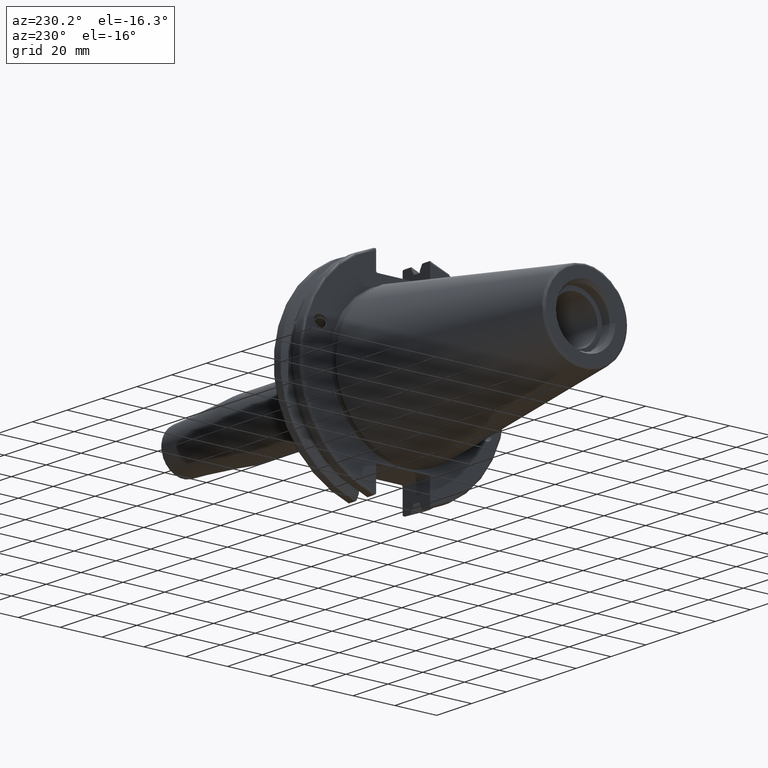
[diagram: clean part render]
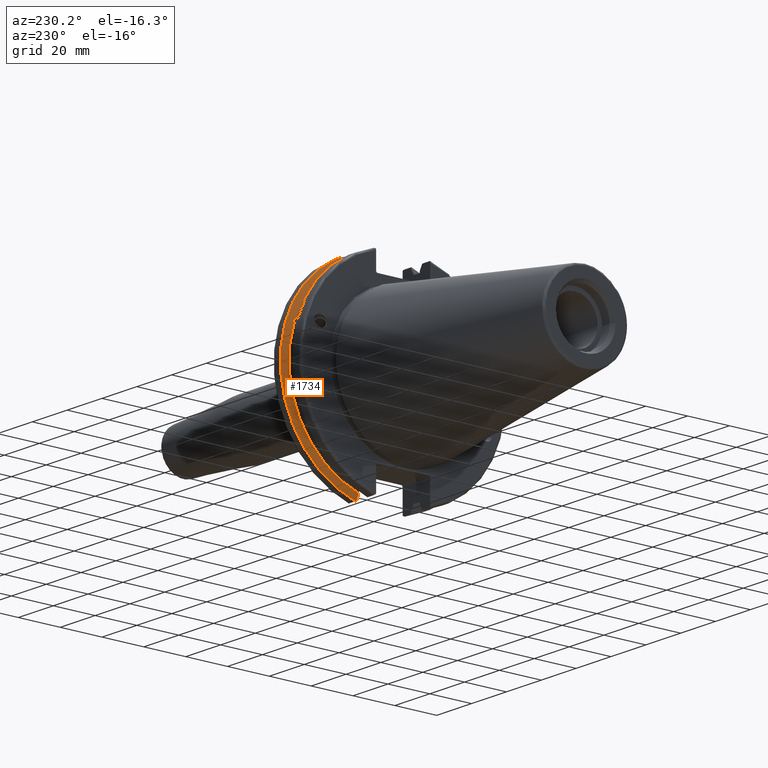
[diagram: same view with one face highlighted and labeled with its STEP entity id]
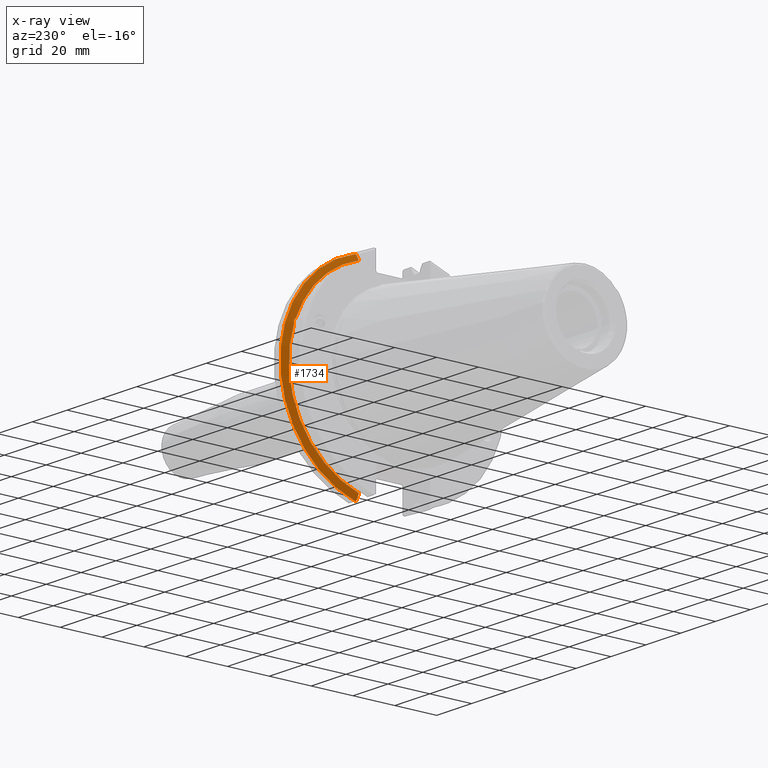
[diagram: x-ray of the same camera — body ghosted, the highlighted face saturated]
A machine part, auxiliary view. The second image highlights one B-rep face of the part: STEP entity #1734.
The next image is the same camera in x-ray: the body ghosted, the highlighted face saturated — about 0% of this face is hidden behind the body in this view.
In plain terms, the highlighted conical surface has half-angle 60 deg.
Its self-contained STEP definition (entity closure, byte-faithful):
#23=(
BOUNDED_CURVE()
B_SPLINE_CURVE(2,(#3378,#3379,#3380),.UNSPECIFIED.,.F.,.F.)
B_SPLINE_CURVE_WITH_KNOTS((3,3),(0.325260944932521,0.390084992222202),
 .UNSPECIFIED.)
CURVE()
GEOMETRIC_REPRESENTATION_ITEM()
RATIONAL_B_SPLINE_CURVE((1.00019140645994,1.00011477674864,1.))
REPRESENTATION_ITEM('')
);
#24=(
BOUNDED_CURVE()
B_SPLINE_CURVE(2,(#3392,#3393,#3394),.UNSPECIFIED.,.F.,.F.)
B_SPLINE_CURVE_WITH_KNOTS((3,3),(0.0558332664532001,0.331657177124504),
 .UNSPECIFIED.)
CURVE()
GEOMETRIC_REPRESENTATION_ITEM()
RATIONAL_B_SPLINE_CURVE((1.00012873636632,1.00038235574022,1.))
REPRESENTATION_ITEM('')
);
#29=(
BOUNDED_CURVE()
B_SPLINE_CURVE(2,(#3557,#3558,#3559),.UNSPECIFIED.,.F.,.F.)
B_SPLINE_CURVE_WITH_KNOTS((3,3),(0.,0.275823910671402),.UNSPECIFIED.)
CURVE()
GEOMETRIC_REPRESENTATION_ITEM()
RATIONAL_B_SPLINE_CURVE((1.,1.00038235574129,1.00012873636668))
REPRESENTATION_ITEM('')
);
#30=(
BOUNDED_CURVE()
B_SPLINE_CURVE(2,(#3574,#3575,#3576),.UNSPECIFIED.,.F.,.F.)
B_SPLINE_CURVE_WITH_KNOTS((3,3),(0.,0.0648240472897064),.UNSPECIFIED.)
CURVE()
GEOMETRIC_REPRESENTATION_ITEM()
RATIONAL_B_SPLINE_CURVE((1.,1.00011477674844,1.00019140645961))
REPRESENTATION_ITEM('')
);
#114=CONICAL_SURFACE('',#1929,47.8172386482472,1.0471975511966);
#164=CIRCLE('',#1862,46.4219772964944);
#188=CIRCLE('',#1922,49.2125);
#191=CIRCLE('',#1930,46.4219772964944);
#281=FACE_OUTER_BOUND('',#399,.T.);
#399=EDGE_LOOP('',(#1559,#1560,#1561,#1562,#1563,#1564,#1565,#1566,#1567));
#448=B_SPLINE_CURVE_WITH_KNOTS('',3,(#3174,#3175,#3176,#3177,#3178,#3179,
#3180,#3181),.UNSPECIFIED.,.F.,.F.,(4,2,2,4),(0.426712868358719,0.441644498666905,
0.480313313223129,0.518982127779353),.UNSPECIFIED.);
#452=B_SPLINE_CURVE_WITH_KNOTS('',3,(#3236,#3237,#3238,#3239,#3240,#3241,
#3242,#3243),.UNSPECIFIED.,.F.,.F.,(4,2,2,4),(0.518982127779353,0.557650942335576,
0.5963197568918,0.611251387199989),.UNSPECIFIED.);
#767=VERTEX_POINT('',#3171);
#768=VERTEX_POINT('',#3173);
#775=VERTEX_POINT('',#3234);
#784=VERTEX_POINT('',#3276);
#812=VERTEX_POINT('',#3375);
#813=VERTEX_POINT('',#3377);
#838=VERTEX_POINT('',#3554);
#839=VERTEX_POINT('',#3556);
#842=VERTEX_POINT('',#3572);
#972=EDGE_CURVE('',#768,#767,#448,.T.);
#980=EDGE_CURVE('',#767,#775,#452,.T.);
#992=EDGE_CURVE('',#784,#768,#164,.T.);
#1029=EDGE_CURVE('',#812,#813,#23,.T.);
#1034=EDGE_CURVE('',#812,#784,#24,.T.);
#1079=EDGE_CURVE('',#839,#838,#29,.T.);
#1087=EDGE_CURVE('',#842,#838,#30,.T.);
#1088=EDGE_CURVE('',#813,#842,#188,.T.);
#1094=EDGE_CURVE('',#775,#839,#191,.T.);
#1559=ORIENTED_EDGE('',*,*,#972,.T.);
#1560=ORIENTED_EDGE('',*,*,#980,.T.);
#1561=ORIENTED_EDGE('',*,*,#1094,.T.);
#1562=ORIENTED_EDGE('',*,*,#1079,.T.);
#1563=ORIENTED_EDGE('',*,*,#1087,.F.);
#1564=ORIENTED_EDGE('',*,*,#1088,.F.);
#1565=ORIENTED_EDGE('',*,*,#1029,.F.);
#1566=ORIENTED_EDGE('',*,*,#1034,.T.);
#1567=ORIENTED_EDGE('',*,*,#992,.T.);
#1734=ADVANCED_FACE('',(#281),#114,.T.);
#1862=AXIS2_PLACEMENT_3D('',#3277,#2184,#2185);
#1922=AXIS2_PLACEMENT_3D('',#3578,#2351,#2352);
#1929=AXIS2_PLACEMENT_3D('',#3591,#2368,#2369);
#1930=AXIS2_PLACEMENT_3D('',#3592,#2370,#2371);
#2184=DIRECTION('center_axis',(1.,0.,0.));
#2185=DIRECTION('ref_axis',(0.,0.,-1.));
#2351=DIRECTION('center_axis',(1.,0.,0.));
#2352=DIRECTION('ref_axis',(0.,0.,-1.));
#2368=DIRECTION('center_axis',(1.,0.,0.));
#2369=DIRECTION('ref_axis',(0.,1.,0.));
#2370=DIRECTION('center_axis',(1.,0.,0.));
#2371=DIRECTION('ref_axis',(0.,0.,-1.));
#3171=CARTESIAN_POINT('',(13.2341,43.923494649906,15.9868446375166));
#3173=CARTESIAN_POINT('',(13.0491,43.9096390749305,15.0646464421033));
#3174=CARTESIAN_POINT('Ctrl Pts',(13.0491,43.9096390749305,15.0646464421033));
#3175=CARTESIAN_POINT('Ctrl Pts',(13.0660815609661,43.9250360001461,15.1104047527575));
#3176=CARTESIAN_POINT('Ctrl Pts',(13.0821132459668,43.9385582852181,15.1564111356409));
#3177=CARTESIAN_POINT('Ctrl Pts',(13.1358132615496,43.9797830409459,15.3217566390709));
#3178=CARTESIAN_POINT('Ctrl Pts',(13.1719838933644,43.9989016655819,15.4570249042868));
#3179=CARTESIAN_POINT('Ctrl Pts',(13.2212913174802,43.9931221605126,15.7289849146254));
#3180=CARTESIAN_POINT('Ctrl Pts',(13.2341,43.9675796948952,15.8657219718732));
#3181=CARTESIAN_POINT('Ctrl Pts',(13.2341,43.923494649906,15.9868446375166));
#3234=CARTESIAN_POINT('',(13.0491,43.3201030900029,16.684383248648));
#3236=CARTESIAN_POINT('Ctrl Pts',(13.2341,43.923494649906,15.9868446375166));
#3237=CARTESIAN_POINT('Ctrl Pts',(13.2341,43.8794096049169,16.10796730316));
#3238=CARTESIAN_POINT('Ctrl Pts',(13.2212913174802,43.8110833825827,16.2291323464527));
#3239=CARTESIAN_POINT('Ctrl Pts',(13.1719838933644,43.6406982153492,16.441180795372));
#3240=CARTESIAN_POINT('Ctrl Pts',(13.1358132615496,43.5391037343221,16.5325130832406));
#3241=CARTESIAN_POINT('Ctrl Pts',(13.0821132459668,43.4012416983557,16.6326763251437));
#3242=CARTESIAN_POINT('Ctrl Pts',(13.0660815609661,43.3613106941341,16.6592273018006));
#3243=CARTESIAN_POINT('Ctrl Pts',(13.0491,43.3201030900029,16.684383248648));
#3276=CARTESIAN_POINT('',(13.0491,12.95,-44.5791147973605));
#3277=CARTESIAN_POINT('Origin',(13.0491,0.,0.));
#3375=CARTESIAN_POINT('',(14.3818103943757,12.95,-46.9780755322918));
#3377=CARTESIAN_POINT('',(14.6602090340487,13.4317035994433,-47.3440544806494));
#3378=CARTESIAN_POINT('Ctrl Pts',(14.3818103943757,12.95,-46.9780755322918));
#3379=CARTESIAN_POINT('Ctrl Pts',(14.5199310333617,13.1896660169965,-47.1601640966264));
#3380=CARTESIAN_POINT('Ctrl Pts',(14.6602090340487,13.4317035994433,-47.3440544806494));
#3392=CARTESIAN_POINT('Ctrl Pts',(14.3818103943757,12.95,-46.9780755322918));
#3393=CARTESIAN_POINT('Ctrl Pts',(13.6979955094851,12.95,-45.7494966802933));
#3394=CARTESIAN_POINT('Ctrl Pts',(13.0491,12.95,-44.5791147973604));
#3554=CARTESIAN_POINT('',(14.3818103943757,12.95,46.9780755322918));
#3556=CARTESIAN_POINT('',(13.0491,12.95,44.5791147973604));
#3557=CARTESIAN_POINT('Ctrl Pts',(13.0491,12.95,44.5791147973604));
#3558=CARTESIAN_POINT('Ctrl Pts',(13.6979955094846,12.95,45.7494966802924));
#3559=CARTESIAN_POINT('Ctrl Pts',(14.3818103943757,12.95,46.9780755322918));
#3572=CARTESIAN_POINT('',(14.6602090340487,13.4317035994433,47.3440544806494));
#3574=CARTESIAN_POINT('Ctrl Pts',(14.6602090340487,13.4317035994433,47.3440544806494));
#3575=CARTESIAN_POINT('Ctrl Pts',(14.5199310333618,13.1896660169966,47.1601640966264));
#3576=CARTESIAN_POINT('Ctrl Pts',(14.3818103943757,12.95,46.9780755322918));
#3578=CARTESIAN_POINT('Origin',(14.6602090340487,0.,0.));
#3591=CARTESIAN_POINT('Origin',(13.8546545170244,0.,0.));
#3592=CARTESIAN_POINT('Origin',(13.0491,0.,0.));